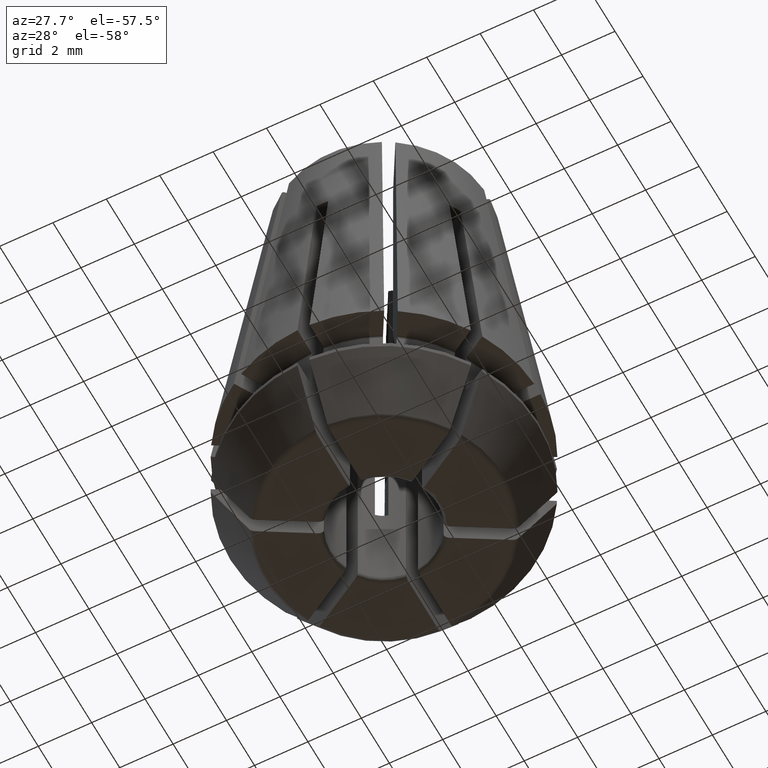
[diagram: clean part render]
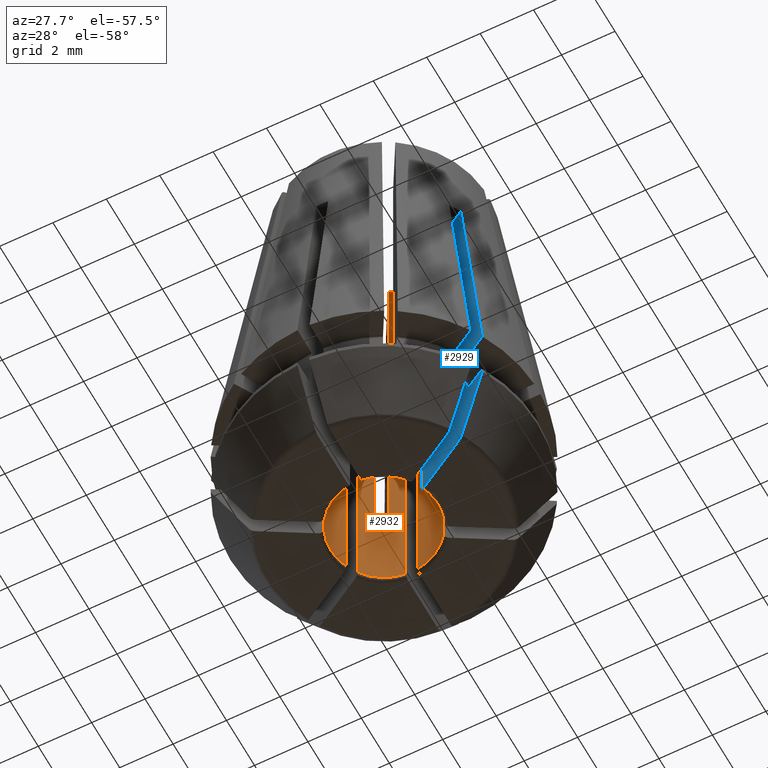
[diagram: same view with the hole feature highlighted: cylindrical wall and planar end face, labeled with their STEP entity ids]
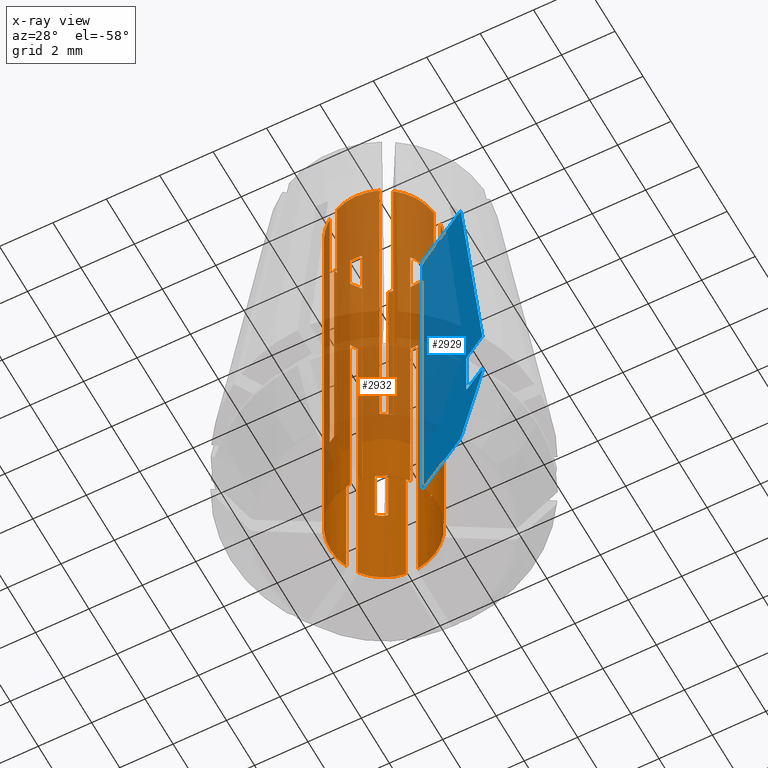
[diagram: x-ray of the same camera — body ghosted, the hole faces saturated]
A machine part, auxiliary view. The highlighted faces form one hole feature of diameter 4 mm: the cylindrical wall (entity #2932, orange) and its adjacent planar end face (entity #2929, blue) — they share a circular edge in the B-rep.
The next image is the same camera in x-ray (body ghosted, the hole faces saturated) — the bore reads through the body.
Wall:
#56=CYLINDRICAL_SURFACE('',#3256,2.);
#84=LINE('',#4397,#252);
#99=LINE('',#4454,#267);
#109=LINE('',#4558,#277);
#120=LINE('',#4625,#288);
#131=LINE('',#4689,#299);
#143=LINE('',#4746,#311);
#170=LINE('',#4964,#338);
#191=LINE('',#5236,#359);
#192=LINE('',#5238,#360);
#195=LINE('',#5250,#363);
#196=LINE('',#5252,#364);
#224=LINE('',#5418,#392);
#225=LINE('',#5420,#393);
#226=LINE('',#5422,#394);
#227=LINE('',#5424,#395);
#228=LINE('',#5426,#396);
#229=LINE('',#5428,#397);
#230=LINE('',#5440,#398);
#231=LINE('',#5442,#399);
#232=LINE('',#5455,#400);
#233=LINE('',#5469,#401);
#234=LINE('',#5472,#402);
#235=LINE('',#5473,#403);
#236=LINE('',#5474,#404);
#252=VECTOR('',#3409,1000.);
#267=VECTOR('',#3450,1000.);
#277=VECTOR('',#3484,1000.);
#288=VECTOR('',#3521,1000.);
#299=VECTOR('',#3558,1000.);
#311=VECTOR('',#3596,1000.);
#338=VECTOR('',#3707,1000.);
#359=VECTOR('',#3844,1000.);
#360=VECTOR('',#3847,1000.);
#363=VECTOR('',#3854,1000.);
#364=VECTOR('',#3857,1000.);
#392=VECTOR('',#4003,1000.);
#393=VECTOR('',#4006,1000.);
#394=VECTOR('',#4009,1000.);
#395=VECTOR('',#4012,1000.);
#396=VECTOR('',#4015,1000.);
#397=VECTOR('',#4018,1000.);
#398=VECTOR('',#4023,1000.);
#399=VECTOR('',#4026,1000.);
#400=VECTOR('',#4029,1000.);
#401=VECTOR('',#4038,1000.);
#402=VECTOR('',#4041,1000.);
#403=VECTOR('',#4042,1000.);
#404=VECTOR('',#4043,1000.);
#473=CIRCLE('',#2959,2.);
#477=CIRCLE('',#2965,2.);
#482=CIRCLE('',#2973,2.);
#485=CIRCLE('',#2978,2.);
#488=CIRCLE('',#2983,2.);
#492=CIRCLE('',#2989,2.);
#495=CIRCLE('',#2994,2.);
#503=CIRCLE('',#3005,2.);
#506=CIRCLE('',#3010,2.);
#544=CIRCLE('',#3088,2.);
#549=CIRCLE('',#3096,2.);
#625=CIRCLE('',#3257,2.);
#1407=ORIENTED_EDGE('',*,*,#1631,.F.);
#1408=ORIENTED_EDGE('',*,*,#1543,.F.);
#1409=ORIENTED_EDGE('',*,*,#1982,.T.);
#1410=ORIENTED_EDGE('',*,*,#1651,.T.);
#1411=ORIENTED_EDGE('',*,*,#1649,.T.);
#1412=ORIENTED_EDGE('',*,*,#1986,.F.);
#1413=ORIENTED_EDGE('',*,*,#1562,.F.);
#1414=ORIENTED_EDGE('',*,*,#1899,.T.);
#1415=ORIENTED_EDGE('',*,*,#1675,.T.);
#1416=ORIENTED_EDGE('',*,*,#1673,.T.);
#1417=ORIENTED_EDGE('',*,*,#1900,.F.);
#1418=ORIENTED_EDGE('',*,*,#1576,.F.);
#1419=ORIENTED_EDGE('',*,*,#1971,.T.);
#1420=ORIENTED_EDGE('',*,*,#1699,.T.);
#1421=ORIENTED_EDGE('',*,*,#1697,.T.);
#1422=ORIENTED_EDGE('',*,*,#1972,.F.);
#1423=ORIENTED_EDGE('',*,*,#1591,.F.);
#1424=ORIENTED_EDGE('',*,*,#1969,.T.);
#1425=ORIENTED_EDGE('',*,*,#1722,.T.);
#1426=ORIENTED_EDGE('',*,*,#1720,.T.);
#1427=ORIENTED_EDGE('',*,*,#1970,.F.);
#1428=ORIENTED_EDGE('',*,*,#1614,.F.);
#1429=ORIENTED_EDGE('',*,*,#1974,.T.);
#1430=ORIENTED_EDGE('',*,*,#1742,.T.);
#1431=ORIENTED_EDGE('',*,*,#1739,.T.);
#1432=ORIENTED_EDGE('',*,*,#1978,.F.);
#1433=ORIENTED_EDGE('',*,*,#1987,.F.);
#1434=ORIENTED_EDGE('',*,*,#1988,.T.);
#1435=ORIENTED_EDGE('',*,*,#1813,.T.);
#1436=ORIENTED_EDGE('',*,*,#1811,.T.);
#1437=ORIENTED_EDGE('',*,*,#1989,.F.);
#1438=ORIENTED_EDGE('',*,*,#1985,.T.);
#1439=ORIENTED_EDGE('',*,*,#1983,.T.);
#1440=ORIENTED_EDGE('',*,*,#1818,.T.);
#1441=ORIENTED_EDGE('',*,*,#1764,.F.);
#1442=ORIENTED_EDGE('',*,*,#1748,.F.);
#1443=ORIENTED_EDGE('',*,*,#1759,.T.);
#1444=ORIENTED_EDGE('',*,*,#1757,.T.);
#1445=ORIENTED_EDGE('',*,*,#1979,.T.);
#1446=ORIENTED_EDGE('',*,*,#1773,.F.);
#1447=ORIENTED_EDGE('',*,*,#1973,.F.);
#1448=ORIENTED_EDGE('',*,*,#1734,.T.);
#1449=ORIENTED_EDGE('',*,*,#1731,.T.);
#1450=ORIENTED_EDGE('',*,*,#1726,.T.);
#1451=ORIENTED_EDGE('',*,*,#1608,.F.);
#1452=ORIENTED_EDGE('',*,*,#1893,.F.);
#1453=ORIENTED_EDGE('',*,*,#1711,.T.);
#1454=ORIENTED_EDGE('',*,*,#1708,.T.);
#1455=ORIENTED_EDGE('',*,*,#1703,.T.);
#1456=ORIENTED_EDGE('',*,*,#1585,.F.);
#1457=ORIENTED_EDGE('',*,*,#1894,.F.);
#1458=ORIENTED_EDGE('',*,*,#1690,.T.);
#1459=ORIENTED_EDGE('',*,*,#1688,.T.);
#1460=ORIENTED_EDGE('',*,*,#1680,.T.);
#1461=ORIENTED_EDGE('',*,*,#1570,.F.);
#1462=ORIENTED_EDGE('',*,*,#1655,.F.);
#1463=ORIENTED_EDGE('',*,*,#1666,.T.);
#1464=ORIENTED_EDGE('',*,*,#1665,.T.);
#1465=ORIENTED_EDGE('',*,*,#1990,.T.);
#1466=ORIENTED_EDGE('',*,*,#1552,.F.);
#1543=EDGE_CURVE('',#1999,#2000,#473,.T.);
#1552=EDGE_CURVE('',#2007,#2008,#477,.T.);
#1562=EDGE_CURVE('',#2017,#2018,#482,.T.);
#1570=EDGE_CURVE('',#2023,#2024,#485,.T.);
#1576=EDGE_CURVE('',#2029,#2030,#488,.T.);
#1585=EDGE_CURVE('',#2037,#2038,#492,.T.);
#1591=EDGE_CURVE('',#2043,#2044,#495,.T.);
#1608=EDGE_CURVE('',#2059,#2060,#503,.T.);
#1614=EDGE_CURVE('',#2065,#2066,#506,.T.);
#1631=EDGE_CURVE('',#2000,#2081,#84,.T.);
#1649=EDGE_CURVE('',#2093,#2096,#2332,.T.);
#1651=EDGE_CURVE('',#2097,#2093,#2333,.T.);
#1655=EDGE_CURVE('',#2101,#2023,#99,.T.);
#1665=EDGE_CURVE('',#2107,#2108,#2337,.T.);
#1666=EDGE_CURVE('',#2101,#2107,#2338,.T.);
#1673=EDGE_CURVE('',#2111,#2114,#2339,.T.);
#1675=EDGE_CURVE('',#2115,#2111,#2340,.T.);
#1680=EDGE_CURVE('',#2120,#2024,#109,.T.);
#1688=EDGE_CURVE('',#2123,#2120,#2344,.T.);
#1690=EDGE_CURVE('',#2126,#2123,#2345,.T.);
#1697=EDGE_CURVE('',#2129,#2132,#2346,.T.);
#1699=EDGE_CURVE('',#2133,#2129,#2347,.T.);
#1703=EDGE_CURVE('',#2136,#2038,#120,.T.);
#1708=EDGE_CURVE('',#2139,#2136,#2350,.T.);
#1711=EDGE_CURVE('',#2141,#2139,#2351,.T.);
#1720=EDGE_CURVE('',#2145,#2148,#2352,.T.);
#1722=EDGE_CURVE('',#2149,#2145,#2353,.T.);
#1726=EDGE_CURVE('',#2152,#2060,#131,.T.);
#1731=EDGE_CURVE('',#2155,#2152,#2356,.T.);
#1734=EDGE_CURVE('',#2157,#2155,#2357,.T.);
#1739=EDGE_CURVE('',#2160,#2161,#2358,.T.);
#1742=EDGE_CURVE('',#2162,#2160,#2359,.T.);
#1748=EDGE_CURVE('',#2167,#2168,#143,.T.);
#1757=EDGE_CURVE('',#2174,#2176,#2364,.T.);
#1759=EDGE_CURVE('',#2167,#2174,#2365,.T.);
#1764=EDGE_CURVE('',#2168,#2179,#544,.T.);
#1773=EDGE_CURVE('',#2187,#2188,#549,.T.);
#1811=EDGE_CURVE('',#2083,#2081,#2373,.T.);
#1813=EDGE_CURVE('',#2214,#2083,#2374,.T.);
#1818=EDGE_CURVE('',#2218,#2179,#170,.T.);
#1893=EDGE_CURVE('',#2141,#2059,#191,.T.);
#1894=EDGE_CURVE('',#2126,#2037,#192,.T.);
#1899=EDGE_CURVE('',#2017,#2115,#195,.T.);
#1900=EDGE_CURVE('',#2030,#2114,#196,.T.);
#1969=EDGE_CURVE('',#2043,#2149,#224,.T.);
#1970=EDGE_CURVE('',#2066,#2148,#225,.T.);
#1971=EDGE_CURVE('',#2029,#2133,#226,.T.);
#1972=EDGE_CURVE('',#2044,#2132,#227,.T.);
#1973=EDGE_CURVE('',#2157,#2187,#228,.T.);
#1974=EDGE_CURVE('',#2065,#2162,#229,.T.);
#1978=EDGE_CURVE('',#2292,#2161,#230,.T.);
#1979=EDGE_CURVE('',#2176,#2188,#231,.T.);
#1982=EDGE_CURVE('',#1999,#2097,#232,.T.);
#1983=EDGE_CURVE('',#2088,#2218,#2422,.T.);
#1985=EDGE_CURVE('',#2293,#2088,#2423,.T.);
#1986=EDGE_CURVE('',#2018,#2096,#233,.T.);
#1987=EDGE_CURVE('',#2294,#2292,#625,.T.);
#1988=EDGE_CURVE('',#2294,#2214,#234,.T.);
#1989=EDGE_CURVE('',#2293,#2007,#235,.T.);
#1990=EDGE_CURVE('',#2108,#2008,#236,.T.);
#1999=VERTEX_POINT('',#4082);
#2000=VERTEX_POINT('',#4083);
#2007=VERTEX_POINT('',#4109);
#2008=VERTEX_POINT('',#4111);
#2017=VERTEX_POINT('',#4142);
#2018=VERTEX_POINT('',#4143);
#2023=VERTEX_POINT('',#4166);
#2024=VERTEX_POINT('',#4168);
#2029=VERTEX_POINT('',#4190);
#2030=VERTEX_POINT('',#4191);
#2037=VERTEX_POINT('',#4217);
#2038=VERTEX_POINT('',#4219);
#2043=VERTEX_POINT('',#4241);
#2044=VERTEX_POINT('',#4242);
#2059=VERTEX_POINT('',#4315);
#2060=VERTEX_POINT('',#4317);
#2065=VERTEX_POINT('',#4339);
#2066=VERTEX_POINT('',#4340);
#2081=VERTEX_POINT('',#4398);
#2083=VERTEX_POINT('',#4404);
#2088=VERTEX_POINT('',#4415);
#2093=VERTEX_POINT('',#4426);
#2096=VERTEX_POINT('',#4434);
#2097=VERTEX_POINT('',#4441);
#2101=VERTEX_POINT('',#4453);
#2107=VERTEX_POINT('',#4479);
#2108=VERTEX_POINT('',#4484);
#2111=VERTEX_POINT('',#4499);
#2114=VERTEX_POINT('',#4507);
#2115=VERTEX_POINT('',#4514);
#2120=VERTEX_POINT('',#4559);
#2123=VERTEX_POINT('',#4567);
#2126=VERTEX_POINT('',#4580);
#2129=VERTEX_POINT('',#4590);
#2132=VERTEX_POINT('',#4598);
#2133=VERTEX_POINT('',#4605);
#2136=VERTEX_POINT('',#4626);
#2139=VERTEX_POINT('',#4634);
#2141=VERTEX_POINT('',#4642);
#2145=VERTEX_POINT('',#4657);
#2148=VERTEX_POINT('',#4665);
#2149=VERTEX_POINT('',#4672);
#2152=VERTEX_POINT('',#4690);
#2155=VERTEX_POINT('',#4698);
#2157=VERTEX_POINT('',#4706);
#2160=VERTEX_POINT('',#4719);
#2161=VERTEX_POINT('',#4721);
#2162=VERTEX_POINT('',#4728);
#2167=VERTEX_POINT('',#4745);
#2168=VERTEX_POINT('',#4747);
#2174=VERTEX_POINT('',#4779);
#2176=VERTEX_POINT('',#4782);
#2179=VERTEX_POINT('',#4803);
#2187=VERTEX_POINT('',#4827);
#2188=VERTEX_POINT('',#4829);
#2214=VERTEX_POINT('',#4939);
#2218=VERTEX_POINT('',#4965);
#2292=VERTEX_POINT('',#5439);
#2293=VERTEX_POINT('',#5463);
#2294=VERTEX_POINT('',#5471);
#2332=B_SPLINE_CURVE_WITH_KNOTS('',3,(#4435,#4436,#4437,#4438),
 .UNSPECIFIED.,.F.,.F.,(4,4),(3.90914652586594E-18,0.000226215290162392),
 .UNSPECIFIED.);
#2333=B_SPLINE_CURVE_WITH_KNOTS('',3,(#4442,#4443,#4444,#4445),
 .UNSPECIFIED.,.F.,.F.,(4,4),(2.62233520975301E-18,0.000225719396806828),
 .UNSPECIFIED.);
#2337=B_SPLINE_CURVE_WITH_KNOTS('',3,(#4485,#4486,#4487,#4488),
 .UNSPECIFIED.,.F.,.F.,(4,4),(3.42168434169343E-18,0.000227327296749474),
 .UNSPECIFIED.);
#2338=B_SPLINE_CURVE_WITH_KNOTS('',3,(#4490,#4491,#4492,#4493),
 .UNSPECIFIED.,.F.,.F.,(4,4),(1.08960969816284E-18,0.000227237766363196),
 .UNSPECIFIED.);
#2339=B_SPLINE_CURVE_WITH_KNOTS('',3,(#4508,#4509,#4510,#4511),
 .UNSPECIFIED.,.F.,.F.,(4,4),(9.00456231554019E-19,0.00022621529016238),
 .UNSPECIFIED.);
#2340=B_SPLINE_CURVE_WITH_KNOTS('',3,(#4515,#4516,#4517,#4518),
 .UNSPECIFIED.,.F.,.F.,(4,4),(0.,0.000225719396806837),.UNSPECIFIED.);
#2344=B_SPLINE_CURVE_WITH_KNOTS('',3,(#4574,#4575,#4576,#4577),
 .UNSPECIFIED.,.F.,.F.,(4,4),(5.87957373783675E-19,0.000227327296749468),
 .UNSPECIFIED.);
#2345=B_SPLINE_CURVE_WITH_KNOTS('',3,(#4581,#4582,#4583,#4584),
 .UNSPECIFIED.,.F.,.F.,(4,4),(0.,0.000227237766363198),.UNSPECIFIED.);
#2346=B_SPLINE_CURVE_WITH_KNOTS('',3,(#4599,#4600,#4601,#4602),
 .UNSPECIFIED.,.F.,.F.,(4,4),(5.8184394216733E-18,0.000226215290162378),
 .UNSPECIFIED.);
#2347=B_SPLINE_CURVE_WITH_KNOTS('',3,(#4606,#4607,#4608,#4609),
 .UNSPECIFIED.,.F.,.F.,(4,4),(1.74822347316868E-18,0.000225719396806842),
 .UNSPECIFIED.);
#2350=B_SPLINE_CURVE_WITH_KNOTS('',3,(#4635,#4636,#4637,#4638),
 .UNSPECIFIED.,.F.,.F.,(4,4),(3.63490804605048E-18,0.000227327296749453),
 .UNSPECIFIED.);
#2351=B_SPLINE_CURVE_WITH_KNOTS('',3,(#4644,#4645,#4646,#4647),
 .UNSPECIFIED.,.F.,.F.,(4,4),(5.16904116777866E-18,0.000227237766363205),
 .UNSPECIFIED.);
#2352=B_SPLINE_CURVE_WITH_KNOTS('',3,(#4666,#4667,#4668,#4669),
 .UNSPECIFIED.,.F.,.F.,(4,4),(7.81829305173188E-19,0.000226215290162391),
 .UNSPECIFIED.);
#2353=B_SPLINE_CURVE_WITH_KNOTS('',3,(#4673,#4674,#4675,#4676),
 .UNSPECIFIED.,.F.,.F.,(4,4),(0.,0.000225719396806823),.UNSPECIFIED.);
#2356=B_SPLINE_CURVE_WITH_KNOTS('',3,(#4699,#4700,#4701,#4702),
 .UNSPECIFIED.,.F.,.F.,(4,4),(3.91665690075488E-18,0.00022732729674947),
 .UNSPECIFIED.);
#2357=B_SPLINE_CURVE_WITH_KNOTS('',3,(#4708,#4709,#4710,#4711),
 .UNSPECIFIED.,.F.,.F.,(4,4),(0.,0.000227237766363202),.UNSPECIFIED.);
#2358=B_SPLINE_CURVE_WITH_KNOTS('',3,(#4722,#4723,#4724,#4725),
 .UNSPECIFIED.,.F.,.F.,(4,4),(9.00456231553988E-19,0.000226215290162387),
 .UNSPECIFIED.);
#2359=B_SPLINE_CURVE_WITH_KNOTS('',3,(#4731,#4732,#4733,#4734),
 .UNSPECIFIED.,.F.,.F.,(4,4),(0.,0.000225719396806829),.UNSPECIFIED.);
#2364=B_SPLINE_CURVE_WITH_KNOTS('',3,(#4783,#4784,#4785,#4786),
 .UNSPECIFIED.,.F.,.F.,(4,4),(5.87957373783685E-19,0.000227327296749471),
 .UNSPECIFIED.);
#2365=B_SPLINE_CURVE_WITH_KNOTS('',3,(#4789,#4790,#4791,#4792),
 .UNSPECIFIED.,.F.,.F.,(4,4),(0.,0.0002272377663632),.UNSPECIFIED.);
#2373=B_SPLINE_CURVE_WITH_KNOTS('',3,(#4933,#4934,#4935,#4936),
 .UNSPECIFIED.,.F.,.F.,(4,4),(7.56459285077716E-18,0.000226215290162374),
 .UNSPECIFIED.);
#2374=B_SPLINE_CURVE_WITH_KNOTS('',3,(#4940,#4941,#4942,#4943),
 .UNSPECIFIED.,.F.,.F.,(4,4),(2.04566856771261E-18,0.00022571939680684),
 .UNSPECIFIED.);
#2422=B_SPLINE_CURVE_WITH_KNOTS('',3,(#5457,#5458,#5459,#5460),
 .UNSPECIFIED.,.F.,.F.,(4,4),(3.94655547894557E-18,0.000227327296749459),
 .UNSPECIFIED.);
#2423=B_SPLINE_CURVE_WITH_KNOTS('',3,(#5464,#5465,#5466,#5467),
 .UNSPECIFIED.,.F.,.F.,(4,4),(1.75577160673917E-18,0.0002272377663632),
 .UNSPECIFIED.);
#2574=EDGE_LOOP('',(#1407,#1408,#1409,#1410,#1411,#1412,#1413,#1414,#1415,
#1416,#1417,#1418,#1419,#1420,#1421,#1422,#1423,#1424,#1425,#1426,#1427,
#1428,#1429,#1430,#1431,#1432,#1433,#1434,#1435,#1436));
#2575=EDGE_LOOP('',(#1437,#1438,#1439,#1440,#1441,#1442,#1443,#1444,#1445,
#1446,#1447,#1448,#1449,#1450,#1451,#1452,#1453,#1454,#1455,#1456,#1457,
#1458,#1459,#1460,#1461,#1462,#1463,#1464,#1465,#1466));
#2732=FACE_BOUND('',#2574,.T.);
#2733=FACE_BOUND('',#2575,.T.);
#2932=ADVANCED_FACE('',(#2732,#2733),#56,.F.);
#2959=AXIS2_PLACEMENT_3D('',#4081,#3278,#3279);
#2965=AXIS2_PLACEMENT_3D('',#4110,#3292,#3293);
#2973=AXIS2_PLACEMENT_3D('',#4141,#3310,#3311);
#2978=AXIS2_PLACEMENT_3D('',#4167,#3322,#3323);
#2983=AXIS2_PLACEMENT_3D('',#4189,#3332,#3333);
#2989=AXIS2_PLACEMENT_3D('',#4218,#3346,#3347);
#2994=AXIS2_PLACEMENT_3D('',#4240,#3356,#3357);
#3005=AXIS2_PLACEMENT_3D('',#4316,#3380,#3381);
#3010=AXIS2_PLACEMENT_3D('',#4338,#3390,#3391);
#3088=AXIS2_PLACEMENT_3D('',#4805,#3616,#3617);
#3096=AXIS2_PLACEMENT_3D('',#4828,#3635,#3636);
#3256=AXIS2_PLACEMENT_3D('',#5468,#4036,#4037);
#3257=AXIS2_PLACEMENT_3D('',#5470,#4039,#4040);
#3278=DIRECTION('',(0.,0.,1.));
#3279=DIRECTION('',(1.,0.,0.));
#3292=DIRECTION('',(0.,0.,-1.));
#3293=DIRECTION('',(-1.,0.,0.));
#3310=DIRECTION('',(0.,0.,1.));
#3311=DIRECTION('',(1.,0.,0.));
#3322=DIRECTION('',(0.,0.,-1.));
#3323=DIRECTION('',(-1.,0.,0.));
#3332=DIRECTION('',(0.,0.,1.));
#3333=DIRECTION('',(1.,0.,0.));
#3346=DIRECTION('',(0.,0.,-1.));
#3347=DIRECTION('',(-1.,0.,0.));
#3356=DIRECTION('',(0.,0.,1.));
#3357=DIRECTION('',(1.,0.,0.));
#3380=DIRECTION('',(0.,0.,-1.));
#3381=DIRECTION('',(-1.,0.,0.));
#3390=DIRECTION('',(0.,0.,1.));
#3391=DIRECTION('',(1.,0.,0.));
#3409=DIRECTION('',(0.,0.,1.));
#3450=DIRECTION('',(0.,0.,1.));
#3484=DIRECTION('',(0.,0.,1.));
#3521=DIRECTION('',(0.,0.,1.));
#3558=DIRECTION('',(0.,0.,1.));
#3596=DIRECTION('',(0.,0.,1.));
#3616=DIRECTION('',(0.,0.,-1.));
#3617=DIRECTION('',(-1.,0.,0.));
#3635=DIRECTION('',(0.,0.,-1.));
#3636=DIRECTION('',(-1.,0.,0.));
#3707=DIRECTION('',(0.,0.,1.));
#3844=DIRECTION('',(0.,0.,1.));
#3847=DIRECTION('',(0.,0.,1.));
#3854=DIRECTION('',(0.,0.,1.));
#3857=DIRECTION('',(0.,0.,1.));
#4003=DIRECTION('',(0.,0.,1.));
#4006=DIRECTION('',(0.,0.,1.));
#4009=DIRECTION('',(0.,0.,1.));
#4012=DIRECTION('',(0.,0.,1.));
#4015=DIRECTION('',(0.,0.,1.));
#4018=DIRECTION('',(0.,0.,1.));
#4023=DIRECTION('',(0.,0.,1.));
#4026=DIRECTION('',(0.,0.,1.));
#4029=DIRECTION('',(0.,0.,1.));
#4036=DIRECTION('',(0.,0.,-1.));
#4037=DIRECTION('',(1.,0.,0.));
#4038=DIRECTION('',(0.,0.,1.));
#4039=DIRECTION('',(0.,0.,1.));
#4040=DIRECTION('',(1.,0.,0.));
#4041=DIRECTION('',(0.,0.,1.));
#4042=DIRECTION('',(0.,0.,1.));
#4043=DIRECTION('',(0.,0.,1.));
#4081=CARTESIAN_POINT('',(0.,0.,-4.3));
#4082=CARTESIAN_POINT('',(1.83355527220947,-0.798796008848854,-4.3));
#4083=CARTESIAN_POINT('',(1.83355527220947,0.798796008848862,-4.3));
#4109=CARTESIAN_POINT('',(0.798796008848692,-1.83355527220919,13.3000000000001));
#4110=CARTESIAN_POINT('',(0.,0.,13.3));
#4111=CARTESIAN_POINT('',(-0.79879600884885,-1.83355527220947,13.3));
#4141=CARTESIAN_POINT('',(0.,0.,-4.3));
#4142=CARTESIAN_POINT('',(0.225000000000008,-1.98730344940072,-4.30000000000025));
#4143=CARTESIAN_POINT('',(1.60855527220947,-1.18850744055185,-4.3));
#4166=CARTESIAN_POINT('',(-1.18850744055169,-1.60855527220919,13.3000000000001));
#4167=CARTESIAN_POINT('',(0.,0.,13.3));
#4168=CARTESIAN_POINT('',(-1.98730344940072,-0.224999999999999,13.2999999999986));
#4189=CARTESIAN_POINT('',(0.,0.,-4.3));
#4190=CARTESIAN_POINT('',(-1.60855527220947,-1.18850744055185,-4.3));
#4191=CARTESIAN_POINT('',(-0.224999999999992,-1.98730344940072,-4.30000000000025));
#4217=CARTESIAN_POINT('',(-1.98730344940072,0.225000000000001,13.2999999999986));
#4218=CARTESIAN_POINT('',(0.,0.,13.3));
#4219=CARTESIAN_POINT('',(-1.18850744055169,1.60855527220919,13.3000000000001));
#4240=CARTESIAN_POINT('',(0.,0.,-4.3));
#4241=CARTESIAN_POINT('',(-1.83355527220947,0.798796008848859,-4.3));
#4242=CARTESIAN_POINT('',(-1.83355527220947,-0.798796008848859,-4.3));
#4315=CARTESIAN_POINT('',(-0.798796008848684,1.83355527220919,13.3000000000001));
#4316=CARTESIAN_POINT('',(0.,0.,13.3));
#4317=CARTESIAN_POINT('',(0.798796008848694,1.83355527220919,13.3000000000001));
#4338=CARTESIAN_POINT('',(0.,0.,-4.3));
#4339=CARTESIAN_POINT('',(-0.225,1.98730344940072,-4.3));
#4340=CARTESIAN_POINT('',(-1.60855527220947,1.18850744055186,-4.3));
#4397=CARTESIAN_POINT('',(1.83355527220947,0.798796008848864,60.));
#4398=CARTESIAN_POINT('',(1.83355527220947,0.798796008848864,9.48032374257807));
#4404=CARTESIAN_POINT('',(1.73205080756889,1.,9.49999999999998));
#4415=CARTESIAN_POINT('',(0.999999999999997,-1.73205080756887,-0.499999999999969));
#4426=CARTESIAN_POINT('',(1.73205080756889,-1.,9.49999999999998));
#4434=CARTESIAN_POINT('',(1.60855527220947,-1.18850744055185,9.48032374257806));
#4435=CARTESIAN_POINT('',(1.73205080756888,-0.99999999999999,9.49999999999996));
#4436=CARTESIAN_POINT('',(1.69414461682573,-1.06565544828852,9.49999999999996));
#4437=CARTESIAN_POINT('',(1.65292981095278,-1.12844984578049,9.49335594349104));
#4438=CARTESIAN_POINT('',(1.60855527220947,-1.18850744055185,9.48032374257806));
#4441=CARTESIAN_POINT('',(1.83355527220947,-0.798796008848857,9.48032374257807));
#4442=CARTESIAN_POINT('',(1.83355527220946,-0.798796008848852,9.48032374257805));
#4443=CARTESIAN_POINT('',(1.8035266838943,-0.86772358962335,9.49344528381218));
#4444=CARTESIAN_POINT('',(1.76969714087011,-0.934794638003599,9.49999999999996));
#4445=CARTESIAN_POINT('',(1.73205080756888,-0.999999999999994,9.49999999999996));
#4453=CARTESIAN_POINT('',(-1.18850744055186,-1.60855527220947,-0.470142045443442));
#4454=CARTESIAN_POINT('',(-1.18850744055186,-1.60855527220947,60.));
#4479=CARTESIAN_POINT('',(-1.,-1.73205080756887,-0.49999999999997));
#4484=CARTESIAN_POINT('',(-0.798796008848862,-1.83355527220947,-0.47014204544338));
#4485=CARTESIAN_POINT('',(-1.,-1.73205080756888,-0.49999999999994));
#4486=CARTESIAN_POINT('',(-0.933697480182204,-1.77033058523363,-0.49999999999994));
#4487=CARTESIAN_POINT('',(-0.866599370110516,-1.80401645481833,-0.489743897382828));
#4488=CARTESIAN_POINT('',(-0.798796008848872,-1.83355527220946,-0.470142045443374));
#4490=CARTESIAN_POINT('',(-1.18850744055185,-1.60855527220946,-0.470142045443425));
#4491=CARTESIAN_POINT('',(-1.12879014254106,-1.65267837711091,-0.489821091743972));
#4492=CARTESIAN_POINT('',(-1.06603518967318,-1.6939253730351,-0.50000000000032));
#4493=CARTESIAN_POINT('',(-1.00000000000004,-1.73205080756887,-0.500000000000323));
#4499=CARTESIAN_POINT('',(2.43945488809239E-16,-2.,9.49999999999999));
#4507=CARTESIAN_POINT('',(-0.224999999999992,-1.98730344940072,9.48032374257808));
#4508=CARTESIAN_POINT('',(2.43945488809239E-16,-2.,9.49999999999998));
#4509=CARTESIAN_POINT('',(-0.0758123814862979,-2.,9.49999999999998));
#4510=CARTESIAN_POINT('',(-0.150801327866158,-1.99570412984796,9.49335594349105));
#4511=CARTESIAN_POINT('',(-0.224999999999992,-1.98730344940072,9.48032374257807));
#4514=CARTESIAN_POINT('',(0.225000000000008,-1.98730344940072,9.48032374257808));
#4515=CARTESIAN_POINT('',(0.225000000000008,-1.98730344940072,9.48032374257808));
#4516=CARTESIAN_POINT('',(0.150292669870302,-1.99576171946725,9.49344528381221));
#4517=CARTESIAN_POINT('',(0.0752926666024537,-2.,9.49999999999998));
#4518=CARTESIAN_POINT('',(-5.88671609716622E-16,-2.,9.49999999999998));
#4558=CARTESIAN_POINT('',(-1.98730344940072,-0.225,60.));
#4559=CARTESIAN_POINT('',(-1.98730344940072,-0.224999999999999,-0.470142045443454));
#4567=CARTESIAN_POINT('',(-2.,1.3552527156069E-16,-0.500000000000004));
#4574=CARTESIAN_POINT('',(-2.,1.35525271560692E-16,-0.500000000000009));
#4575=CARTESIAN_POINT('',(-2.,-0.076559555329513,-0.500000000000009));
#4576=CARTESIAN_POINT('',(-1.99562376377307,-0.151511157989876,-0.489743897382896));
#4577=CARTESIAN_POINT('',(-1.98730344940072,-0.224999999999997,-0.470142045443441));
#4580=CARTESIAN_POINT('',(-1.98730344940072,0.225,-0.470142045443458));
#4581=CARTESIAN_POINT('',(-1.98730344940072,0.225,-0.470142045443458));
#4582=CARTESIAN_POINT('',(-1.99565653013383,0.151221750426559,-0.489821091744005));
#4583=CARTESIAN_POINT('',(-2.00000000000002,0.0762508690675762,-0.500000000000294));
#4584=CARTESIAN_POINT('',(-2.00000000000002,3.24382139406211E-14,-0.500000000000297));
#4590=CARTESIAN_POINT('',(-1.73205080756889,-1.,9.49999999999998));
#4598=CARTESIAN_POINT('',(-1.83355527220947,-0.798796008848866,9.48032374257807));
#4599=CARTESIAN_POINT('',(-1.73205080756888,-0.999999999999995,9.49999999999996));
#4600=CARTESIAN_POINT('',(-1.76995699831203,-0.934344551711465,9.49999999999996));
#4601=CARTESIAN_POINT('',(-1.80373113881893,-0.867254284067464,9.49335594349104));
#4602=CARTESIAN_POINT('',(-1.83355527220946,-0.798796008848874,9.48032374257807));
#4605=CARTESIAN_POINT('',(-1.60855527220946,-1.18850744055186,9.48032374257809));
#4606=CARTESIAN_POINT('',(-1.60855527220946,-1.18850744055186,9.48032374257809));
#4607=CARTESIAN_POINT('',(-1.653234014024,-1.12803812984389,9.49344528381222));
#4608=CARTESIAN_POINT('',(-1.69440447426765,-1.06520536199639,9.50000000000003));
#4609=CARTESIAN_POINT('',(-1.73205080756888,-0.999999999999995,9.50000000000003));
#4625=CARTESIAN_POINT('',(-1.18850744055186,1.60855527220947,60.));
#4626=CARTESIAN_POINT('',(-1.18850744055185,1.60855527220947,-0.470142045443427));
#4634=CARTESIAN_POINT('',(-1.,1.73205080756887,-0.49999999999997));
#4635=CARTESIAN_POINT('',(-1.,1.73205080756888,-0.49999999999994));
#4636=CARTESIAN_POINT('',(-1.0663025198178,1.69377102990412,-0.49999999999994));
#4637=CARTESIAN_POINT('',(-1.12902439366256,1.65250529682847,-0.489743897382837));
#4638=CARTESIAN_POINT('',(-1.18850744055184,1.60855527220948,-0.470142045443385));
#4642=CARTESIAN_POINT('',(-0.798796008848862,1.83355527220947,-0.470142045443465));
#4644=CARTESIAN_POINT('',(-0.798796008848857,1.83355527220947,-0.470142045443458));
#4645=CARTESIAN_POINT('',(-0.866866387592758,1.80390012753748,-0.489821091744006));
#4646=CARTESIAN_POINT('',(-0.933964810326845,1.77017624210268,-0.500000000000323));
#4647=CARTESIAN_POINT('',(-0.999999999999981,1.73205080756891,-0.500000000000326));
#4657=CARTESIAN_POINT('',(-1.73205080756888,1.,9.49999999999998));
#4665=CARTESIAN_POINT('',(-1.60855527220947,1.18850744055186,9.48032374257807));
#4666=CARTESIAN_POINT('',(-1.73205080756888,0.999999999999995,9.49999999999996));
#4667=CARTESIAN_POINT('',(-1.69414461682573,1.06565544828853,9.49999999999996));
#4668=CARTESIAN_POINT('',(-1.65292981095277,1.1284498457805,9.49335594349104));
#4669=CARTESIAN_POINT('',(-1.60855527220947,1.18850744055185,9.48032374257806));
#4672=CARTESIAN_POINT('',(-1.83355527220947,0.79879600884886,9.48032374257809));
#4673=CARTESIAN_POINT('',(-1.83355527220947,0.79879600884886,9.48032374257809));
#4674=CARTESIAN_POINT('',(-1.8035266838943,0.867723589623358,9.49344528381222));
#4675=CARTESIAN_POINT('',(-1.7696971408701,0.934794638003602,9.49999999999996));
#4676=CARTESIAN_POINT('',(-1.73205080756888,0.999999999999995,9.49999999999996));
#4689=CARTESIAN_POINT('',(0.798796008848865,1.83355527220947,60.));
#4690=CARTESIAN_POINT('',(0.798796008848858,1.83355527220947,-0.470142045443419));
#4698=CARTESIAN_POINT('',(0.999999999999997,1.73205080756888,-0.499999999999969));
#4699=CARTESIAN_POINT('',(0.999999999999999,1.73205080756888,-0.499999999999937));
#4700=CARTESIAN_POINT('',(0.933697480182201,1.77033058523363,-0.499999999999937));
#4701=CARTESIAN_POINT('',(0.86659937011052,1.80401645481833,-0.489743897382836));
#4702=CARTESIAN_POINT('',(0.798796008848878,1.83355527220946,-0.470142045443382));
#4706=CARTESIAN_POINT('',(1.18850744055186,1.60855527220947,-0.470142045443442));
#4708=CARTESIAN_POINT('',(1.18850744055186,1.60855527220947,-0.470142045443442));
#4709=CARTESIAN_POINT('',(1.12879014254107,1.65267837711092,-0.48982109174399));
#4710=CARTESIAN_POINT('',(1.06603518967317,1.6939253730351,-0.500000000000328));
#4711=CARTESIAN_POINT('',(1.00000000000004,1.73205080756887,-0.500000000000331));
#4719=CARTESIAN_POINT('',(0.,2.,9.49999999999999));
#4721=CARTESIAN_POINT('',(0.225,1.98730344940072,9.48032374257808));
#4722=CARTESIAN_POINT('',(0.,2.,9.49999999999998));
#4723=CARTESIAN_POINT('',(0.0758123814863006,2.,9.49999999999998));
#4724=CARTESIAN_POINT('',(0.150801327866164,1.99570412984796,9.49335594349105));
#4725=CARTESIAN_POINT('',(0.225,1.98730344940072,9.48032374257807));
#4728=CARTESIAN_POINT('',(-0.225,1.98730344940072,9.48032374257808));
#4731=CARTESIAN_POINT('',(-0.225,1.98730344940072,9.48032374257808));
#4732=CARTESIAN_POINT('',(-0.150292669870297,1.99576171946725,9.49344528381221));
#4733=CARTESIAN_POINT('',(-0.075292666602451,2.,9.49999999999998));
#4734=CARTESIAN_POINT('',(7.9047622712276E-16,2.,9.49999999999998));
#4745=CARTESIAN_POINT('',(1.98730344940072,-0.225,-0.470142045443442));
#4746=CARTESIAN_POINT('',(1.98730344940072,-0.225,60.));
#4747=CARTESIAN_POINT('',(1.98730344940039,-0.225,13.3000000000001));
#4779=CARTESIAN_POINT('',(2.,5.42101086242755E-17,-0.500000000000004));
#4782=CARTESIAN_POINT('',(1.98730344940072,0.225,-0.470142045443444));
#4783=CARTESIAN_POINT('',(2.,5.42101086242758E-17,-0.500000000000009));
#4784=CARTESIAN_POINT('',(2.,0.076559555329514,-0.500000000000009));
#4785=CARTESIAN_POINT('',(1.99562376377307,0.151511157989879,-0.489743897382895));
#4786=CARTESIAN_POINT('',(1.98730344940072,0.225,-0.47014204544344));
#4789=CARTESIAN_POINT('',(1.98730344940072,-0.225,-0.470142045443442));
#4790=CARTESIAN_POINT('',(1.99565653013383,-0.151221750426559,-0.489821091743989));
#4791=CARTESIAN_POINT('',(2.00000000000002,-0.0762508690675767,-0.500000000000295));
#4792=CARTESIAN_POINT('',(2.00000000000002,-3.23253474724837E-14,-0.500000000000298));
#4803=CARTESIAN_POINT('',(1.18850744055169,-1.60855527220919,13.3000000000001));
#4805=CARTESIAN_POINT('',(0.,0.,13.3));
#4827=CARTESIAN_POINT('',(1.18850744055169,1.60855527220919,13.3000000000001));
#4828=CARTESIAN_POINT('',(0.,0.,13.3));
#4829=CARTESIAN_POINT('',(1.98730344940039,0.225,13.3000000000001));
#4933=CARTESIAN_POINT('',(1.73205080756888,0.99999999999999,9.49999999999996));
#4934=CARTESIAN_POINT('',(1.76995699831203,0.934344551711463,9.49999999999996));
#4935=CARTESIAN_POINT('',(1.80373113881893,0.867254284067454,9.49335594349104));
#4936=CARTESIAN_POINT('',(1.83355527220947,0.798796008848865,9.48032374257806));
#4939=CARTESIAN_POINT('',(1.60855527220947,1.18850744055186,9.48032374257808));
#4940=CARTESIAN_POINT('',(1.60855527220946,1.18850744055186,9.48032374257807));
#4941=CARTESIAN_POINT('',(1.653234014024,1.12803812984389,9.4934452838122));
#4942=CARTESIAN_POINT('',(1.69440447426766,1.06520536199639,9.49999999999996));
#4943=CARTESIAN_POINT('',(1.73205080756888,0.999999999999991,9.49999999999996));
#4964=CARTESIAN_POINT('',(1.18850744055186,-1.60855527220947,60.));
#4965=CARTESIAN_POINT('',(1.18850744055185,-1.60855527220947,-0.470142045443417));
#5236=CARTESIAN_POINT('',(-0.798796008848859,1.83355527220947,60.));
#5238=CARTESIAN_POINT('',(-1.98730344940072,0.225,60.));
#5250=CARTESIAN_POINT('',(0.225000000000008,-1.98730344940072,60.));
#5252=CARTESIAN_POINT('',(-0.224999999999992,-1.98730344940072,60.));
#5418=CARTESIAN_POINT('',(-1.83355527220947,0.798796008848859,60.));
#5420=CARTESIAN_POINT('',(-1.60855527220947,1.18850744055186,60.));
#5422=CARTESIAN_POINT('',(-1.60855527220946,-1.18850744055186,60.));
#5424=CARTESIAN_POINT('',(-1.83355527220947,-0.798796008848869,60.));
#5426=CARTESIAN_POINT('',(1.18850744055186,1.60855527220947,60.));
#5428=CARTESIAN_POINT('',(-0.225,1.98730344940072,60.));
#5439=CARTESIAN_POINT('',(0.225,1.98730344940072,-4.3));
#5440=CARTESIAN_POINT('',(0.225,1.98730344940072,60.));
#5442=CARTESIAN_POINT('',(1.98730344940072,0.225,60.));
#5455=CARTESIAN_POINT('',(1.83355527220947,-0.798796008848858,60.));
#5457=CARTESIAN_POINT('',(0.999999999999999,-1.73205080756888,-0.499999999999937));
#5458=CARTESIAN_POINT('',(1.06630251981779,-1.69377102990412,-0.499999999999937));
#5459=CARTESIAN_POINT('',(1.12902439366256,-1.65250529682847,-0.489743897382834));
#5460=CARTESIAN_POINT('',(1.18850744055184,-1.60855527220948,-0.470142045443381));
#5463=CARTESIAN_POINT('',(0.798796008848864,-1.83355527220947,-0.470142045443447));
#5464=CARTESIAN_POINT('',(0.79879600884886,-1.83355527220946,-0.470142045443442));
#5465=CARTESIAN_POINT('',(0.86686638759276,-1.80390012753747,-0.489821091743989));
#5466=CARTESIAN_POINT('',(0.933964810326844,-1.77017624210268,-0.500000000000322));
#5467=CARTESIAN_POINT('',(0.999999999999979,-1.73205080756891,-0.500000000000325));
#5468=CARTESIAN_POINT('',(0.,0.,60.));
#5469=CARTESIAN_POINT('',(1.60855527220947,-1.18850744055185,60.));
#5470=CARTESIAN_POINT('',(0.,0.,-4.3));
#5471=CARTESIAN_POINT('',(1.60855527220947,1.18850744055186,-4.3));
#5472=CARTESIAN_POINT('',(1.60855527220947,1.18850744055186,60.));
#5473=CARTESIAN_POINT('',(0.798796008848864,-1.83355527220947,60.));
#5474=CARTESIAN_POINT('',(-0.798796008848862,-1.83355527220947,60.));
End face:
#96=LINE('',#4429,#264);
#158=LINE('',#4858,#326);
#174=LINE('',#5011,#342);
#207=LINE('',#5343,#375);
#208=LINE('',#5356,#376);
#209=LINE('',#5360,#377);
#232=LINE('',#5455,#400);
#264=VECTOR('',#3433,1000.);
#326=VECTOR('',#3661,1000.);
#342=VECTOR('',#3739,1000.);
#375=VECTOR('',#3912,1000.);
#376=VECTOR('',#3925,1000.);
#377=VECTOR('',#3930,1000.);
#400=VECTOR('',#4029,1000.);
#466=PLANE('',#3252);
#516=CIRCLE('',#3027,25.);
#606=CIRCLE('',#3211,11643.0881429355);
#1387=ORIENTED_EDGE('',*,*,#1546,.T.);
#1388=ORIENTED_EDGE('',*,*,#1932,.F.);
#1389=ORIENTED_EDGE('',*,*,#1934,.F.);
#1390=ORIENTED_EDGE('',*,*,#1936,.F.);
#1391=ORIENTED_EDGE('',*,*,#1939,.T.);
#1392=ORIENTED_EDGE('',*,*,#1937,.F.);
#1393=ORIENTED_EDGE('',*,*,#1541,.F.);
#1394=ORIENTED_EDGE('',*,*,#1787,.T.);
#1395=ORIENTED_EDGE('',*,*,#1980,.F.);
#1396=ORIENTED_EDGE('',*,*,#1834,.F.);
#1397=ORIENTED_EDGE('',*,*,#1981,.F.);
#1398=ORIENTED_EDGE('',*,*,#1646,.F.);
#1399=ORIENTED_EDGE('',*,*,#1650,.F.);
#1400=ORIENTED_EDGE('',*,*,#1982,.F.);
#1541=EDGE_CURVE('',#1997,#1998,#2296,.T.);
#1546=EDGE_CURVE('',#1999,#2002,#2298,.T.);
#1646=EDGE_CURVE('',#2094,#2095,#96,.T.);
#1650=EDGE_CURVE('',#2097,#2094,#516,.T.);
#1787=EDGE_CURVE('',#1997,#2197,#158,.T.);
#1834=EDGE_CURVE('',#2226,#2227,#174,.T.);
#1932=EDGE_CURVE('',#2274,#2002,#207,.T.);
#1934=EDGE_CURVE('',#2275,#2274,#2417,.T.);
#1936=EDGE_CURVE('',#2276,#2275,#606,.T.);
#1937=EDGE_CURVE('',#1998,#2277,#208,.T.);
#1939=EDGE_CURVE('',#2276,#2277,#209,.T.);
#1980=EDGE_CURVE('',#2227,#2197,#2420,.T.);
#1981=EDGE_CURVE('',#2095,#2226,#2421,.T.);
#1982=EDGE_CURVE('',#1999,#2097,#232,.T.);
#1997=VERTEX_POINT('',#4073);
#1998=VERTEX_POINT('',#4078);
#1999=VERTEX_POINT('',#4082);
#2002=VERTEX_POINT('',#4090);
#2094=VERTEX_POINT('',#4428);
#2095=VERTEX_POINT('',#4430);
#2097=VERTEX_POINT('',#4441);
#2197=VERTEX_POINT('',#4857);
#2226=VERTEX_POINT('',#5010);
#2227=VERTEX_POINT('',#5012);
#2274=VERTEX_POINT('',#5342);
#2275=VERTEX_POINT('',#5346);
#2276=VERTEX_POINT('',#5353);
#2277=VERTEX_POINT('',#5357);
#2296=B_SPLINE_CURVE_WITH_KNOTS('',3,(#4074,#4075,#4076,#4077),
 .UNSPECIFIED.,.F.,.F.,(4,4),(4.33680868994202E-19,0.000156301568180437),
 .UNSPECIFIED.);
#2298=B_SPLINE_CURVE_WITH_KNOTS('',3,(#4091,#4092,#4093,#4094),
 .UNSPECIFIED.,.F.,.F.,(4,4),(0.,0.000313324949606091),.UNSPECIFIED.);
#2417=B_SPLINE_CURVE_WITH_KNOTS('',3,(#5347,#5348,#5349,#5350),
 .UNSPECIFIED.,.F.,.F.,(4,4),(8.86078365748509E-16,0.000260998560704444),
 .UNSPECIFIED.);
#2420=B_SPLINE_CURVE_WITH_KNOTS('',3,(#5444,#5445,#5446,#5447),
 .UNSPECIFIED.,.F.,.F.,(4,4),(3.17615905516279E-18,0.00015630168438013),
 .UNSPECIFIED.);
#2421=B_SPLINE_CURVE_WITH_KNOTS('',3,(#5448,#5449,#5450,#5451,#5452,#5453,
#5454),.UNSPECIFIED.,.F.,.F.,(4,3,4),(2.01970607867407E-7,0.00775094489359802,
0.00959374956587994),.UNSPECIFIED.);
#2571=EDGE_LOOP('',(#1387,#1388,#1389,#1390,#1391,#1392,#1393,#1394,#1395,
#1396,#1397,#1398,#1399,#1400));
#2729=FACE_BOUND('',#2571,.T.);
#2929=ADVANCED_FACE('',(#2729),#466,.F.);
#3027=AXIS2_PLACEMENT_3D('',#4440,#3442,#3443);
#3211=AXIS2_PLACEMENT_3D('',#5354,#3921,#3922);
#3252=AXIS2_PLACEMENT_3D('',#5443,#4027,#4028);
#3433=DIRECTION('',(0.866025403784438,-0.5,0.));
#3442=DIRECTION('',(0.5,0.866025403784439,0.));
#3443=DIRECTION('',(0.,0.,-1.));
#3661=DIRECTION('',(0.,0.,1.));
#3739=DIRECTION('',(-0.866025403784438,0.5,0.));
#3912=DIRECTION('',(-0.866025403784438,0.5,0.));
#3921=DIRECTION('',(0.500000000017236,0.866025403774487,-1.14368860006067E-11));
#3922=DIRECTION('',(0.749862725966526,-0.432933446718546,-0.500274447596966));
#3925=DIRECTION('',(0.866025403784438,-0.5,0.));
#3930=DIRECTION('',(0.,0.,1.));
#4027=DIRECTION('',(0.5,0.866025403784438,0.));
#4028=DIRECTION('',(0.866025403784438,-0.5,0.));
#4029=DIRECTION('',(0.,0.,1.));
#4073=CARTESIAN_POINT('',(4.22150307252258,-2.17747831417041,-1.9));
#4074=CARTESIAN_POINT('',(4.22150307252258,-2.1774783141704,-1.9));
#4075=CARTESIAN_POINT('',(4.22150307252258,-2.1774783141704,-1.95285100947389));
#4076=CARTESIAN_POINT('',(4.26243202373113,-2.20110865516831,-2.0000000000005));
#4077=CARTESIAN_POINT('',(4.30820092475621,-2.22753334249565,-2.0000000000005));
#4078=CARTESIAN_POINT('',(4.3082009247562,-2.22753334249565,-2.00000000000025));
#4082=CARTESIAN_POINT('',(1.83355527220947,-0.798796008848854,-4.3));
#4090=CARTESIAN_POINT('',(2.00776548272268,-0.899376320784236,-4.5));
#4091=CARTESIAN_POINT('',(1.83355527220947,-0.798796008848851,-4.3));
#4092=CARTESIAN_POINT('',(1.83355527220947,-0.798796008848851,-4.40594961732409));
#4093=CARTESIAN_POINT('',(1.9160252114606,-0.846410050475541,-4.50000000000111));
#4094=CARTESIAN_POINT('',(2.00776548272243,-0.899376320784089,-4.50000000000125));
#4428=CARTESIAN_POINT('',(1.8445508075689,-0.805144284148509,9.5));
#4429=CARTESIAN_POINT('',(1.84455080756888,-0.805144284148499,9.5));
#4430=CARTESIAN_POINT('',(3.93091414398843,-2.0097067180577,9.5));
#4440=CARTESIAN_POINT('',(20.0310842870421,-11.3051442841485,-4.06465996625056));
#4441=CARTESIAN_POINT('',(1.83355527220947,-0.798796008848857,9.48032374257807));
#4857=CARTESIAN_POINT('',(4.22150307252258,-2.17747831417041,-0.100000000000003));
#4858=CARTESIAN_POINT('',(4.22150307252258,-2.17747831417041,60.));
#5010=CARTESIAN_POINT('',(5.08833221682564,-2.6779423539752,0.));
#5011=CARTESIAN_POINT('',(4.25244473891684,-2.19534249359231,1.0842021724855E-16));
#5012=CARTESIAN_POINT('',(4.3082009247562,-2.22753334249564,-6.87126671553209E-29));
#5342=CARTESIAN_POINT('',(3.79860194739889,-1.93331623573964,-4.5));
#5343=CARTESIAN_POINT('',(0.112500000000002,0.194855715851502,-4.5));
#5346=CARTESIAN_POINT('',(3.98635106143266,-2.04171323726811,-4.37500000000068));
#5347=CARTESIAN_POINT('',(3.98635106143357,-2.04171323726768,-4.375));
#5348=CARTESIAN_POINT('',(3.94809994045375,-2.01962894227317,-4.45140564544191));
#5349=CARTESIAN_POINT('',(3.87502932321235,-1.977441601739,-4.5));
#5350=CARTESIAN_POINT('',(3.79860194739889,-1.93331623573964,-4.5));
#5353=CARTESIAN_POINT('',(5.08833221682564,-2.6779423539752,-2.17320508075687));
#5354=CARTESIAN_POINT('',(-8725.62948131334,5038.00433781493,5822.56628394909));
#5356=CARTESIAN_POINT('',(4.2464101615138,-2.19185842870422,-2.));
#5357=CARTESIAN_POINT('',(5.08833221682564,-2.6779423539752,-2.));
#5360=CARTESIAN_POINT('',(5.08833221682564,-2.6779423539752,60.));
#5443=CARTESIAN_POINT('',(20.0310842870421,-11.3051442841485,-4.06465996625056));
#5444=CARTESIAN_POINT('',(4.3082009247562,-2.22753334249564,-1.34815096107107E-28));
#5445=CARTESIAN_POINT('',(4.26243114159226,-2.20110814586519,-2.55795304552336E-15));
#5446=CARTESIAN_POINT('',(4.22150307252224,-2.1774783141702,-0.047147977766272));
#5447=CARTESIAN_POINT('',(4.2215030725222,-2.17747831417018,-0.099999999999902));
#5448=CARTESIAN_POINT('',(3.93091414398843,-2.00970671805768,9.5));
#5449=CARTESIAN_POINT('',(4.24270387143508,-2.18971860112957,6.94162677884327));
#5450=CARTESIAN_POINT('',(4.55440010231292,-2.3696765039323,4.38323836467077));
#5451=CARTESIAN_POINT('',(4.86604894283689,-2.54960704590145,1.82484225554557));
#5452=CARTESIAN_POINT('',(4.94014609008558,-2.59238705381166,1.21656194588805));
#5453=CARTESIAN_POINT('',(5.01424039312911,-2.63516541961924,0.608281174271136));
#5454=CARTESIAN_POINT('',(5.08833221682565,-2.67794235397519,3.99883543961631E-16));
#5455=CARTESIAN_POINT('',(1.83355527220947,-0.798796008848858,60.));